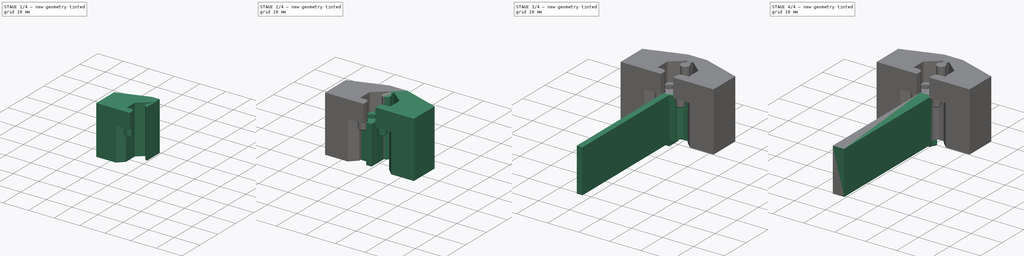
[diagram: build sequence overview — one tinted view per stage of 4, left to right]
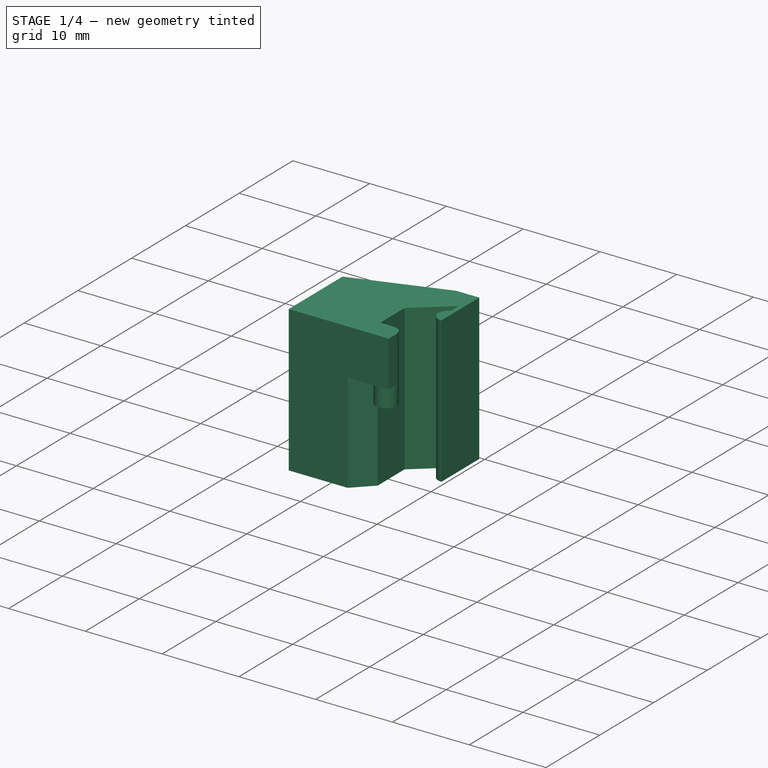
[diagram: stage 1 of 4 — iso view after this stage's code; geometry added in this stage tinted green]
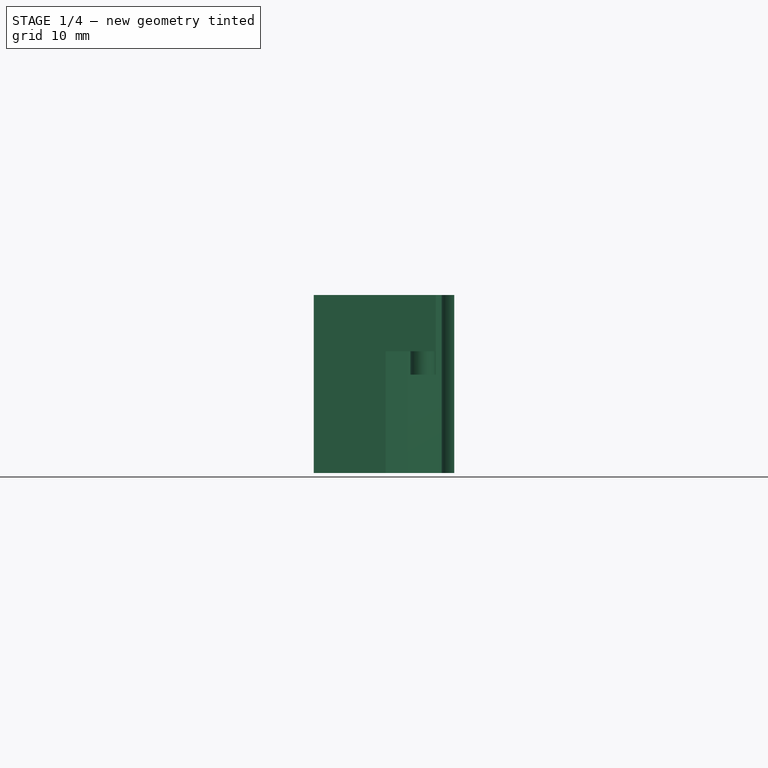
[diagram: stage 1 of 4 — front view after this stage's code; geometry added in this stage tinted green]
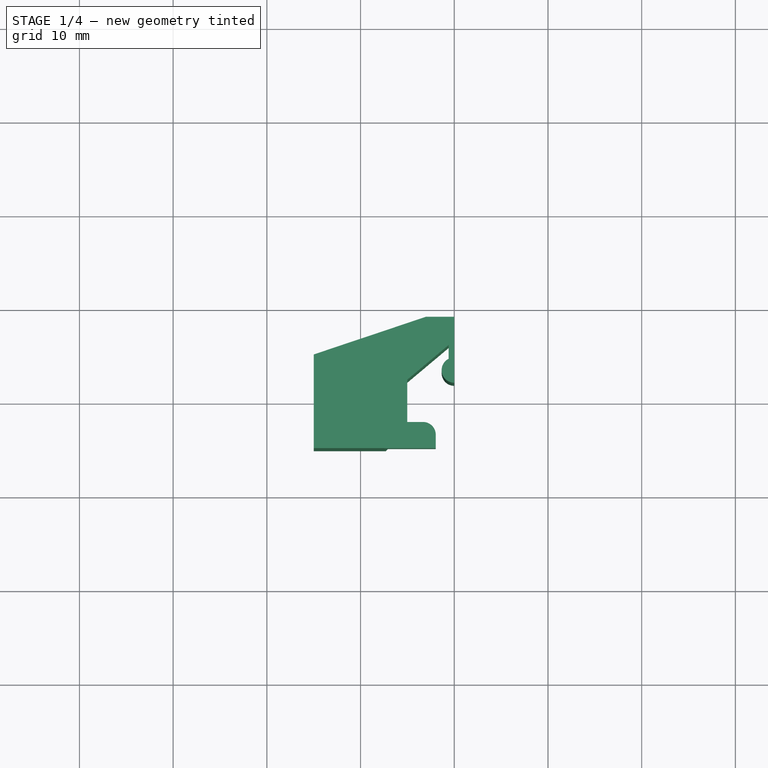
[diagram: stage 1 of 4 — top view after this stage's code; geometry added in this stage tinted green]
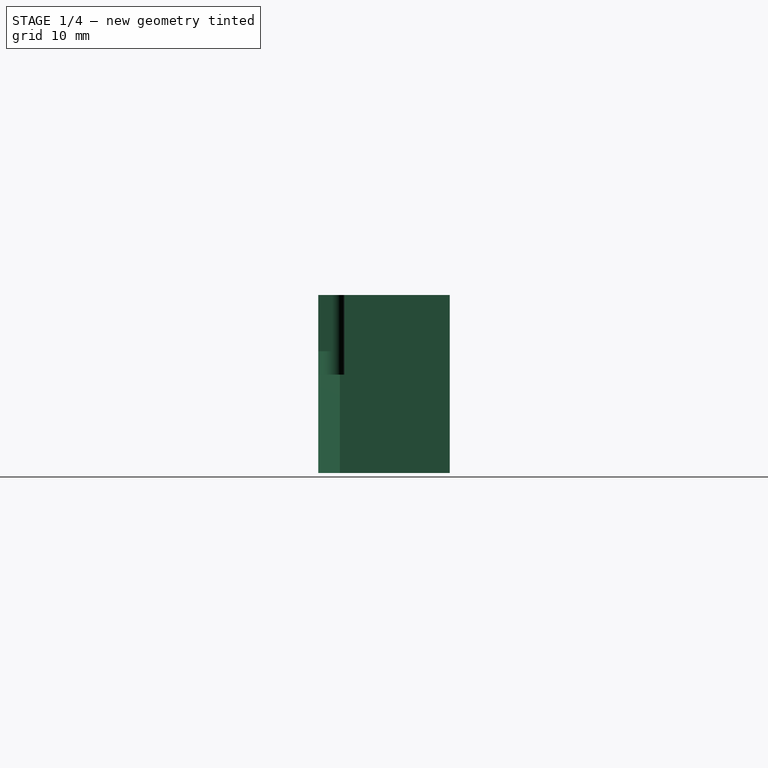
[diagram: stage 1 of 4 — right view after this stage's code; geometry added in this stage tinted green]
FCSTD DOCUMENT  (FreeCAD 0.21R33771 (Git))
Label: magnet_press_jig_side_2 part
License: All rights reserved
LicenseURL: https://en.wikipedia.org/wiki/All_rights_reserved
objects: Sketcher::SketchObject×6, PartDesign::Pad×6, PartDesign::Mirrored×3, PartDesign::Chamfer×3, PartDesign::Body×2, PartDesign::Plane×1
note: 30 computed .brp shape members not serialized (recipe doc carries the construction recipe); baked Part::Feature solids carry a one-line shape summary decoded from their .brp

FEATURE [Sketcher::SketchObject] Sketch001
  FullyConstrained = false
  MapMode = 5
  Support = -> [XY_Plane001]
  sketch-geometry (11):
    g0: ArcOfCircle CenterX=0 CenterY=9 CenterZ=0 NormalX=0 NormalY=0 NormalZ=1 AngleXU=0 Radius=2.4 StartAngle=1.5708 EndAngle=4.71239
    g1: LineSegment StartX=0 StartY=9 StartZ=0 EndX=-3 EndY=9 EndZ=0
    g2: LineSegment StartX=-3 StartY=9 StartZ=0 EndX=-15 EndY=4.97 EndZ=0
    g3: LineSegment StartX=-15 StartY=4.97 StartZ=0 EndX=-15 EndY=-5.03 EndZ=0
    g4: ArcOfCircle CenterX=0 CenterY=3.3 CenterZ=0 NormalX=0 NormalY=0 NormalZ=1 AngleXU=0 Radius=1.35 StartAngle=2.03135 EndAngle=4.71239
    g5: LineSegment StartX=-0.6 StartY=4.50934 StartZ=0 EndX=-0.6 EndY=5.98284 EndZ=0
    g6: LineSegment StartX=-0.6 StartY=5.98284 StartZ=0 EndX=-5.025 EndY=2.26982 EndZ=0
    g7: LineSegment StartX=-5.025 StartY=2.26982 StartZ=0 EndX=-5.025 EndY=-2.73018 EndZ=0
    g8: LineSegment StartX=-5.025 StartY=-2.73018 StartZ=0 EndX=-7.32482 EndY=-5.03 EndZ=0
    g9: LineSegment StartX=-15 StartY=-5.03 StartZ=0 EndX=-7.32482 EndY=-5.03 EndZ=0
    g10: LineSegment StartX=0 StartY=9 StartZ=0 EndX=0 EndY=1.95 EndZ=0
  constraints (36):
    c: PointOnObject(g0,g-2)
    c: Diameter(g0) = 4.8
    c: DistanceY(g-1,g0) = 9
    c: PointOnObject(g1,g-2)
    c: Horizontal(g1)
    c: Coincident(g2,g1)
    c: Coincident(g3,g2)
    c: Vertical(g3)
    c: PointOnObject(g4,g-2)
    c: Coincident(g6,g5)
    c: Coincident(g7,g6)
    c: Coincident(g8,g7)
    c: Vertical(g7)
    c: Angle(g7,g6) = 2.26893
    c: Vertical(g5)
    c: DistanceY(g-1,g4) = 3.3
    c: Diameter(g4) = 2.7
    c: DistanceX(g5,g-1) = 0.6
    c: DistanceY(g5,g5) = 1.4735
    c: DistanceX(g7,g-1) = 5.025
    c: PointOnObject(g0,g-2)
    c: Coincident(g4,g5)
    c: DistanceX(g1,g1) = 3
    c: DistanceY(g7,g7) = 5
    c: DistanceY(g3,g3) = 10
    c: DistanceY(g3,g-1) = 5.03
    c: Angle(g8,g-2) = 0.785398
    c: Horizontal(g9)
    c: Coincident(g8,g9)
    c: Coincident(g3,g9)
    c: DistanceY(g3,g-1) = 5.03
    c: Coincident(g10,g1)
    c: Coincident(g10,g4)
    c: Vertical(g10)
    c: DistanceY(g-1,g1) = 9
    c: DistanceX(g3,g-1) = 15
FEATURE [PartDesign::Pad] Pad001
  Direction = (0,0,1)
  Length = 19
  Length2 = 10
  Profile = -> Sketch001
  ReferenceAxis = -> Sketch001 [N_Axis]
  Type = 0
FEATURE [PartDesign::Plane] DatumPlane
  AttachmentOffset = pos=(0,0,13) rot=(0,0,1;0rad)
  Length = 60
  MapMode = 5
  Placement = pos=(0,0,13) rot=(0,0,1;0rad)
  ResizeMode = 0
  Support = -> [XY_Plane001]
  Width = 60
FEATURE [Sketcher::SketchObject] Sketch002
  FullyConstrained = true
  MapMode = 5
  Placement = pos=(0,0,13) rot=(0,0,1;0rad)
  Support = -> [DatumPlane]
  sketch-geometry (5):
    g0: ArcOfCircle CenterX=-3.33 CenterY=-3.58455 CenterZ=0 NormalX=0 NormalY=0 NormalZ=1 AngleXU=0 Radius=1.35 StartAngle=1e-16 EndAngle=1.5708
    g1: LineSegment StartX=-3.33 StartY=-2.23455 StartZ=0 EndX=-7.525 EndY=-2.23455 EndZ=0
    g2: LineSegment StartX=-7.525 StartY=-2.23455 StartZ=0 EndX=-7.525 EndY=-5.03455 EndZ=0
    g3: LineSegment StartX=-1.98 StartY=-3.58455 StartZ=0 EndX=-1.98 EndY=-5.03455 EndZ=0
    g4: LineSegment StartX=-1.98 StartY=-5.03455 StartZ=0 EndX=-7.525 EndY=-5.03455 EndZ=0
  constraints (14):
    c: Horizontal(g1)
    c: DistanceX(g0,g-1) = 3.33
    c: Diameter(g0) = 2.7
    c: DistanceY(g0,g-1) = 3.58455
    c: Coincident(g2,g1)
    c: Vertical(g2)
    c: Vertical(g3)
    c: Coincident(g4,g3)
    c: Coincident(g4,g2)
    c: Horizontal(g4)
    c: DistanceX(g2,g-1) = 7.525
    c: Tangent(g0,g1) = -1.5708
    c: Tangent(g0,g3) = 1.5708
    c: DistanceY(g2,g2) = 2.8
FEATURE [PartDesign::Pad] Pad002
  BaseFeature = -> Pad001
  Direction = (0,0,1)
  Length = 6
  Length2 = 10
  Profile = -> Sketch002
  ReferenceAxis = -> Sketch002 [N_Axis]
  Refine = true
  Type = 0
FEATURE [Sketcher::SketchObject] Sketch003
  FullyConstrained = true
  MapMode = 5
  Placement = pos=(0,0,13) rot=(0,0,1;0rad)
  Support = -> [DatumPlane]
  sketch-geometry (1):
    g0: Circle CenterX=-3.33 CenterY=-3.58455 CenterZ=0 NormalX=0 NormalY=0 NormalZ=1 AngleXU=0 Radius=1.35
  constraints (3):
    c: DistanceX(g0,g-1) = 3.33
    c: DistanceY(g0,g-1) = 3.58455
    c: Diameter(g0) = 2.7
FEATURE [PartDesign::Pad] Pad003
  BaseFeature = -> Pad002
  Direction = (0,0,1)
  Length = 2.5
  Length2 = 10
  Profile = -> Sketch003
  ReferenceAxis = -> Sketch003 [N_Axis]
  Reversed = true
  Type = 0
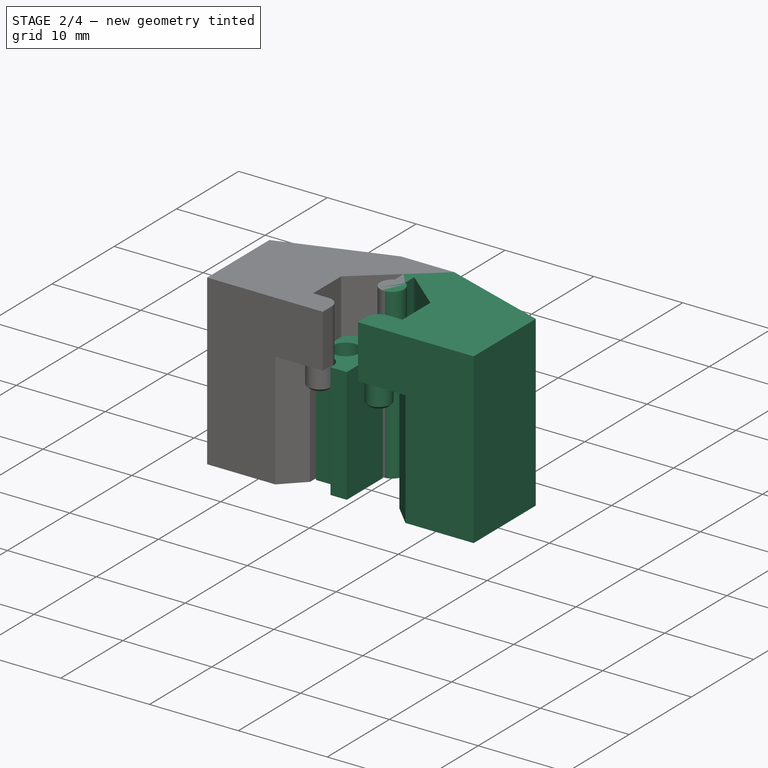
[diagram: stage 2 of 4 — iso view after this stage's code; geometry added in this stage tinted green]
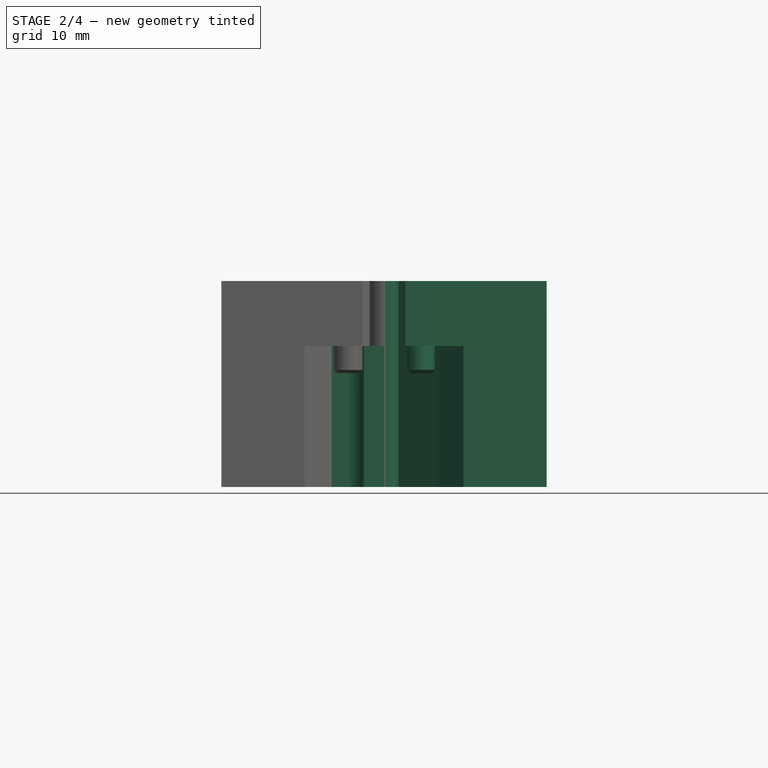
[diagram: stage 2 of 4 — front view after this stage's code; geometry added in this stage tinted green]
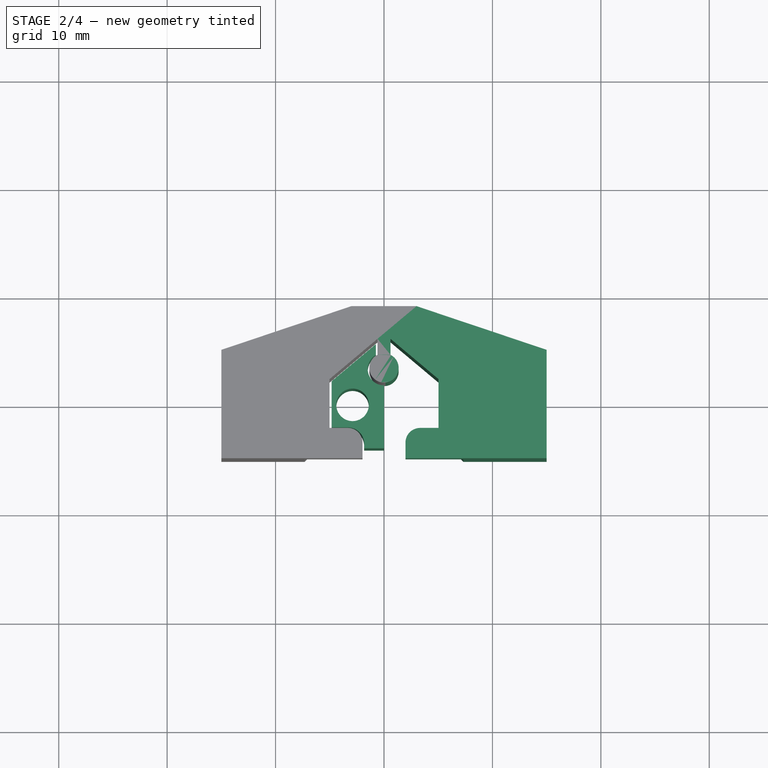
[diagram: stage 2 of 4 — top view after this stage's code; geometry added in this stage tinted green]
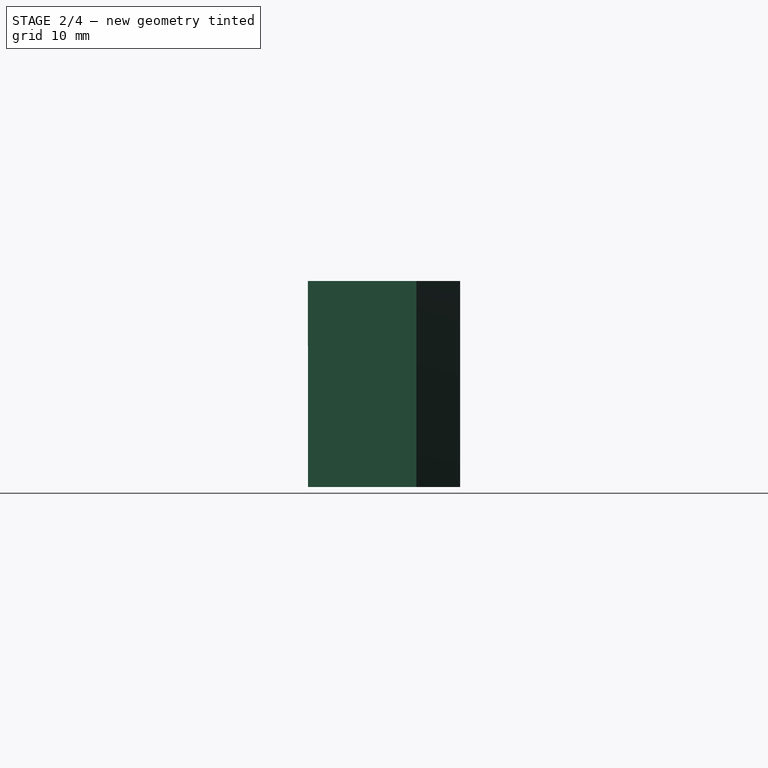
[diagram: stage 2 of 4 — right view after this stage's code; geometry added in this stage tinted green]
FEATURE [Sketcher::SketchObject] Sketch
  FullyConstrained = true
  MapMode = 5
  Support = -> [XY_Plane]
  sketch-geometry (10):
    g0: Circle CenterX=-2.9 CenterY=0 CenterZ=0 NormalX=0 NormalY=0 NormalZ=1 AngleXU=0 Radius=1.5
    g1: ArcOfCircle CenterX=-3.33 CenterY=-3.58 CenterZ=0 NormalX=0 NormalY=0 NormalZ=1 AngleXU=0 Radius=1.5 StartAngle=0 EndAngle=1.5708
    g2: ArcOfCircle CenterX=0 CenterY=3.3 CenterZ=0 NormalX=0 NormalY=0 NormalZ=1 AngleXU=0 Radius=1.5 StartAngle=2.0944 EndAngle=4.71239
    g3: LineSegment StartX=-4.83 StartY=-2.08 StartZ=0 EndX=-4.83 EndY=2.17647 EndZ=0
    g4: LineSegment StartX=-4.83 StartY=2.17647 StartZ=0 EndX=-0.75 EndY=5.6 EndZ=0
    g5: LineSegment StartX=-0.75 StartY=5.6 StartZ=0 EndX=-0.75 EndY=4.59904 EndZ=0
    g6: LineSegment StartX=-3e-16 StartY=-4 StartZ=0 EndX=-3e-16 EndY=1.8 EndZ=0
    g7: LineSegment StartX=-4.83 StartY=-2.08 StartZ=0 EndX=-3.33 EndY=-2.08 EndZ=0
    g8: LineSegment StartX=-1.83 StartY=-3.58 StartZ=0 EndX=-1.83 EndY=-4 EndZ=0
    g9: LineSegment StartX=-1.83 StartY=-4 StartZ=0 EndX=-2e-16 EndY=-4 EndZ=0
  constraints (31):
    c: PointOnObject(g0,g-1)
    c: PointOnObject(g2,g-2)
    c: DistanceY(g-1,g2) = 3.3
    c: Diameter(g2) = 3
    c: DistanceX(g0,g-1) = 2.9
    c: DistanceX(g1,g-1) = 3.33
    c: Diameter(g0) = 3
    c: Diameter(g1) = 3
    c: Vertical(g3)
    c: Coincident(g4,g3)
    c: Coincident(g5,g4)
    c: Vertical(g5)
    c: DistanceX(g4,g-1) = 0.75
    c: Vertical(g6)
    c: Coincident(g2,g6)
    c: Coincident(g2,g5)
    c: Angle(g3,g4) = 2.26893
    c: Horizontal(g7)
    c: Coincident(g3,g7)
    c: Tangent(g1,g7) = 1.5708
    c: DistanceX(g7,g7) = 1.5
    c: DistanceY(g-1,g4) = 5.6
    c: PointOnObject(g6,g-2)
    c: Horizontal(g1,g1)
    c: Coincident(g8,g1)
    c: Vertical(g8)
    c: Coincident(g9,g8)
    c: Horizontal(g9)
    c: Coincident(g6,g9)
    c: DistanceY(g1,g-1) = 3.58
    c: DistanceY(g6,g-1) = 4
FEATURE [PartDesign::Pad] Pad
  Direction = (0,0,1)
  Length = 13
  Length2 = 10
  Profile = -> Sketch
  ReferenceAxis = -> Sketch [N_Axis]
  Type = 0
FEATURE [PartDesign::Mirrored] Mirrored001
  BaseFeature = -> Pad003
  MirrorPlane = -> Sketch001 [V_Axis]
  Originals = -> [Pad001,Pad002,Pad003]
  Refine = true
FEATURE [PartDesign::Body] Body
  Group = -> [Sketch,Pad,Mirrored,Sketch004,Pad004,Sketch005,Pad005,Mirrored002,Chamfer,Chamfer001]
  Origin = -> Origin
  Tip = -> Chamfer001
FEATURE [PartDesign::Chamfer] Chamfer002
  Angle = 45
  Base = -> Mirrored001 [Edge88,Edge90]
  BaseFeature = -> Mirrored001
  ChamferType = 0
  FlipDirection = false
  Size = 0.3
  Size2 = 1
  SupportTransform = false
  UseAllEdges = false
FEATURE [PartDesign::Body] Body001
  Group = -> [Sketch001,Pad001,DatumPlane,Sketch002,Pad002,Sketch003,Pad003,Mirrored001,Chamfer002]
  Origin = -> Origin001
  Tip = -> Chamfer002
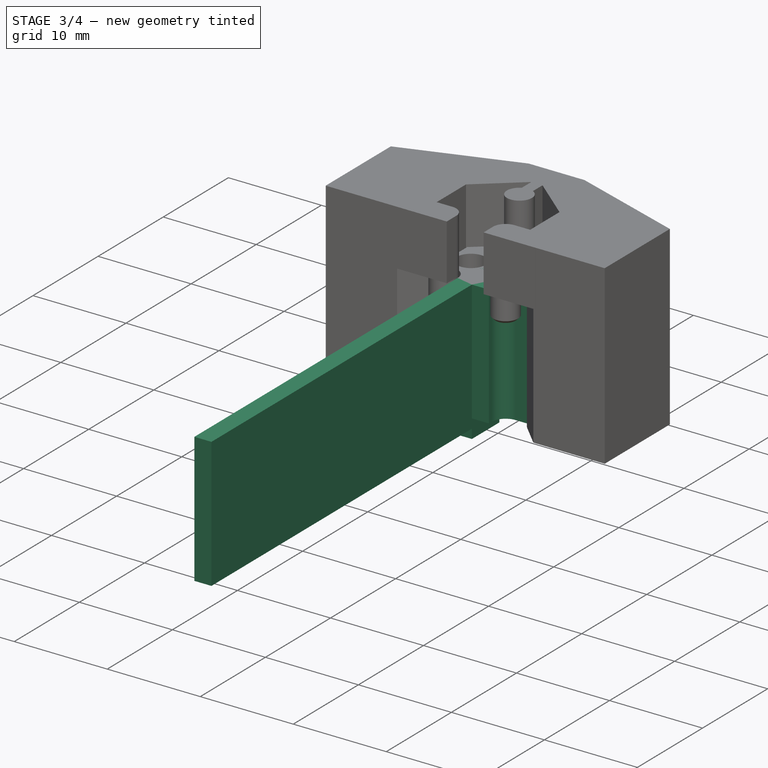
[diagram: stage 3 of 4 — iso view after this stage's code; geometry added in this stage tinted green]
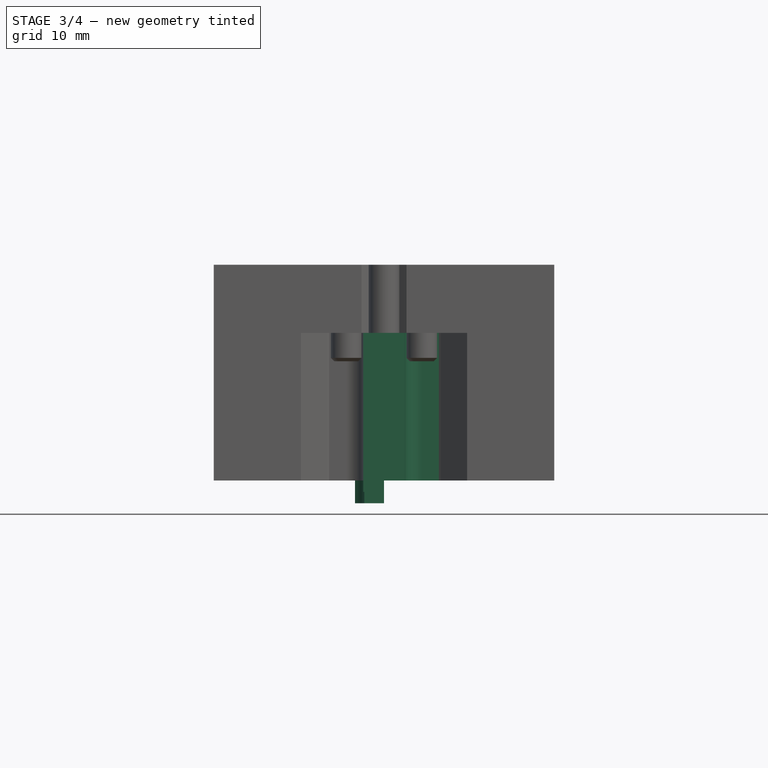
[diagram: stage 3 of 4 — front view after this stage's code; geometry added in this stage tinted green]
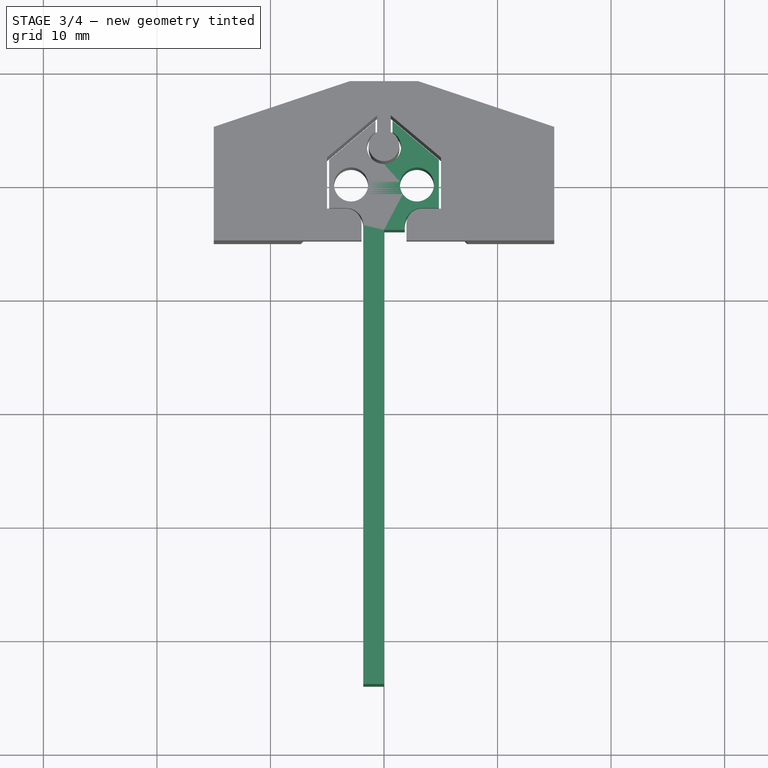
[diagram: stage 3 of 4 — top view after this stage's code; geometry added in this stage tinted green]
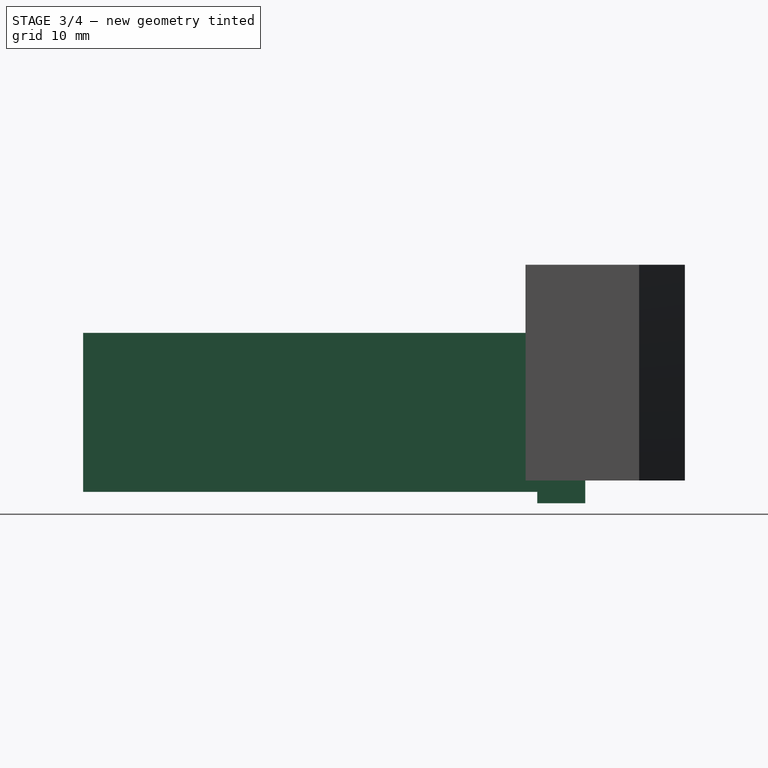
[diagram: stage 3 of 4 — right view after this stage's code; geometry added in this stage tinted green]
FEATURE [PartDesign::Mirrored] Mirrored
  BaseFeature = -> Pad
  MirrorPlane = -> Sketch [V_Axis]
  Originals = -> [Pad]
FEATURE [Sketcher::SketchObject] Sketch004
  FullyConstrained = true
  MapMode = 5
  Support = -> [XY_Plane]
  sketch-geometry (8):
    g0: ArcOfCircle CenterX=-3.33 CenterY=-3.58455 CenterZ=0 NormalX=0 NormalY=0 NormalZ=1 AngleXU=0 Radius=1.6 StartAngle=2e-16 EndAngle=1.06442
    g1: ArcOfCircle CenterX=0 CenterY=-0.126325 CenterZ=0 NormalX=0 NormalY=0 NormalZ=1 AngleXU=0 Radius=0.35 StartAngle=1.5708 EndAngle=2.35619
    g2: LineSegment StartX=-0.247487 StartY=0.121162 StartZ=0 EndX=-2.55399 EndY=-2.18534 EndZ=0
    g3: LineSegment StartX=0 StartY=-0.126325 StartZ=0 EndX=-3.39411 EndY=-3.52044 EndZ=0
    g4: LineSegment StartX=-3.39411 StartY=-3.52044 StartZ=0 EndX=-3.33 EndY=-3.58455 EndZ=0
    g5: LineSegment StartX=0 StartY=0.223675 StartZ=0 EndX=0 EndY=-4 EndZ=0
    g6: LineSegment StartX=-1.73 StartY=-3.58455 StartZ=0 EndX=-1.73 EndY=-4 EndZ=0
    g7: LineSegment StartX=-1.73 StartY=-4 StartZ=0 EndX=0 EndY=-4 EndZ=0
  constraints (23):
    c: PointOnObject(g1,g-2)
    c: DistanceX(g0,g-1) = 3.33
    c: DistanceY(g0,g-1) = 3.58455
    c: Diameter(g0) = 3.2
    c: Diameter(g1) = 0.7
    c: Tangent(g1,g2) = -1.5708
    c: Coincident(g3,g1)
    c: Coincident(g4,g3)
    c: Coincident(g4,g0)
    c: Perpendicular(g3,g4)
    c: Parallel(g3,g2)
    c: Distance(g3) = 4.8
    c: Vertical(g5)
    c: Coincident(g1,g5)
    c: Angle(g2,g5) = 0.785398
    c: Vertical(g6)
    c: Coincident(g0,g2)
    c: Tangent(g0,g6) = 1.5708
    c: Horizontal(g7)
    c: Coincident(g6,g7)
    c: Coincident(g5,g7)
    c: DistanceY(g5,g-1) = 4
    c: PointOnObject(g5,g-2)
FEATURE [PartDesign::Pad] Pad004
  BaseFeature = -> Mirrored
  Direction = (0,0,1)
  Length = 2
  Length2 = 13
  Profile = -> Sketch004
  ReferenceAxis = -> Sketch004 [N_Axis]
  Refine = true
  Reversed = true
  Type = 0
FEATURE [Sketcher::SketchObject] Sketch005
  FullyConstrained = true
  MapMode = 5
  Support = -> [XY_Plane]
  sketch-geometry (4):
    g0: LineSegment StartX=0 StartY=-4 StartZ=0 EndX=0 EndY=-44 EndZ=0
    g1: LineSegment StartX=-1.83 StartY=-4 StartZ=0 EndX=-1.83 EndY=-44 EndZ=0
    g2: LineSegment StartX=-1.83 StartY=-44 StartZ=0 EndX=0 EndY=-44 EndZ=0
    g3: LineSegment StartX=-1.83 StartY=-4 StartZ=0 EndX=0 EndY=-4 EndZ=0
  constraints (12):
    c: PointOnObject(g0,g-2)
    c: Vertical(g0)
    c: Vertical(g1)
    c: Coincident(g2,g1)
    c: Horizontal(g2)
    c: Coincident(g0,g2)
    c: Horizontal(g3)
    c: Coincident(g1,g3)
    c: Coincident(g0,g3)
    c: DistanceY(g0,g-1) = 4
    c: DistanceX(g3,g3) = 1.83
    c: DistanceY(g0,g0) = 40
FEATURE [PartDesign::Pad] Pad005
  BaseFeature = -> Pad004
  Direction = (0,0,1)
  Length = 1
  Length2 = 13
  Profile = -> Sketch005
  ReferenceAxis = -> Sketch005 [N_Axis]
  Refine = true
  Reversed = true
  Type = 4
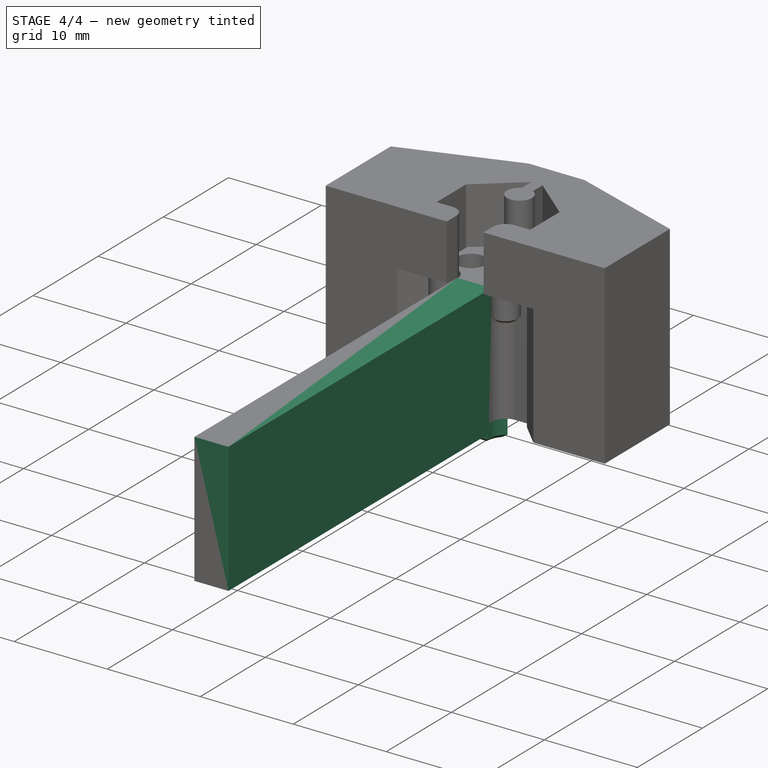
[diagram: stage 4 of 4 — iso view after this stage's code; geometry added in this stage tinted green]
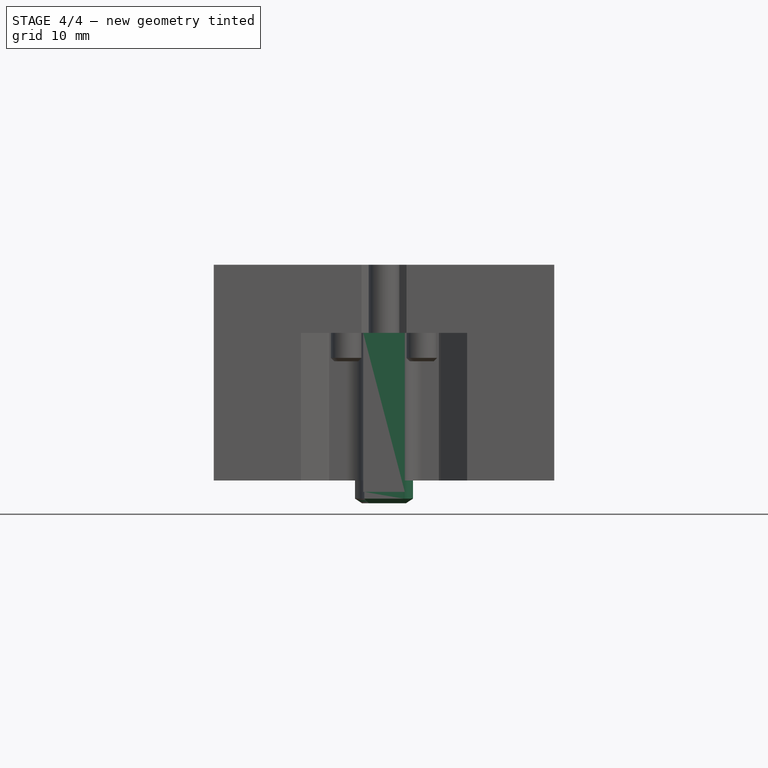
[diagram: stage 4 of 4 — front view after this stage's code; geometry added in this stage tinted green]
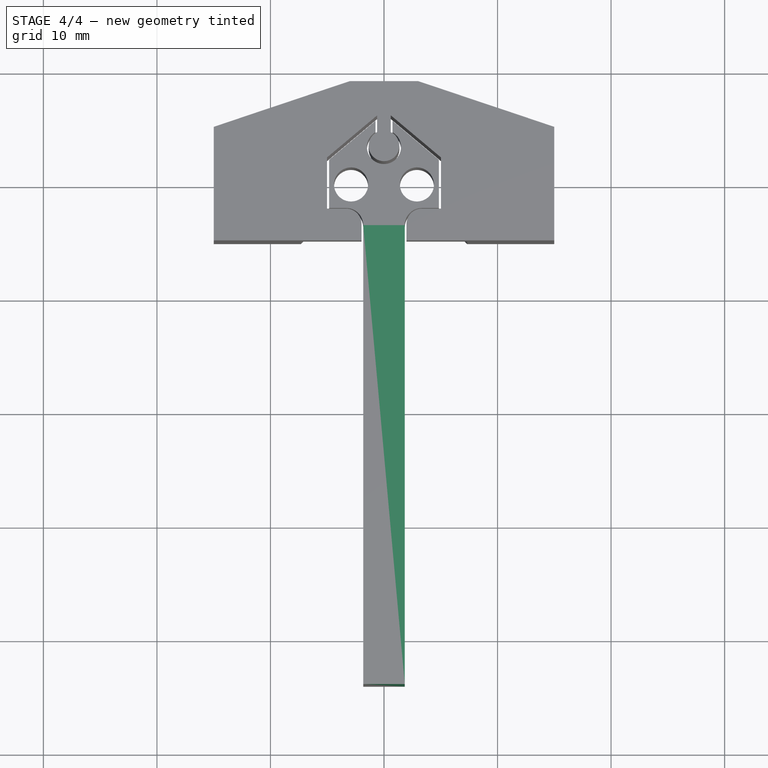
[diagram: stage 4 of 4 — top view after this stage's code; geometry added in this stage tinted green]
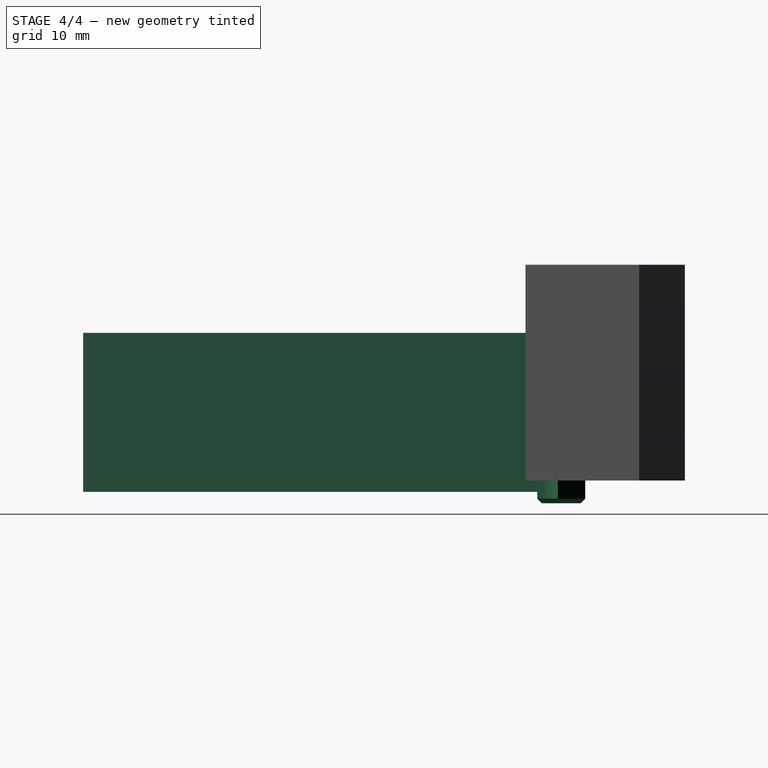
[diagram: stage 4 of 4 — right view after this stage's code; geometry added in this stage tinted green]
FEATURE [PartDesign::Mirrored] Mirrored002
  BaseFeature = -> Pad005
  MirrorPlane = -> Sketch004 [V_Axis]
  Originals = -> [Pad004,Pad005]
  Refine = true
FEATURE [PartDesign::Chamfer] Chamfer
  Angle = 45
  Base = -> Mirrored002 [Edge34,Edge50,Edge86,Edge85,Edge48,Edge46,Edge79,Edge8,Edge44]
  BaseFeature = -> Mirrored002
  ChamferType = 0
  FlipDirection = false
  Size = 0.4
  Size2 = 1
  SupportTransform = false
  UseAllEdges = false
FEATURE [PartDesign::Chamfer] Chamfer001
  Angle = 45
  Base = -> Chamfer
  BaseFeature = -> Chamfer
  ChamferType = 0
  FlipDirection = false
  Size = 1
  Size2 = 1
  SupportTransform = false
  UseAllEdges = false
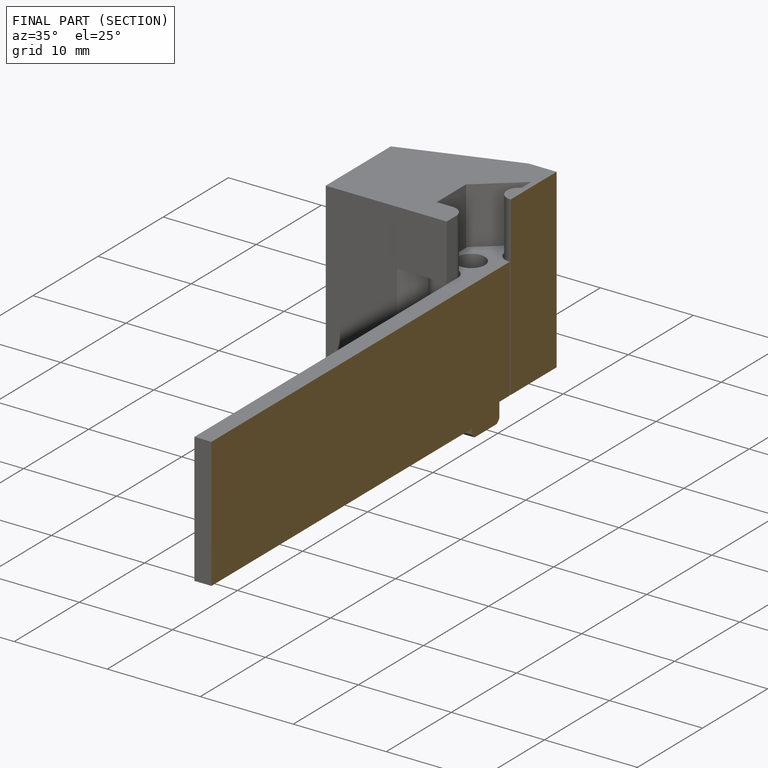
[diagram: finished part — half-section view (interior)]
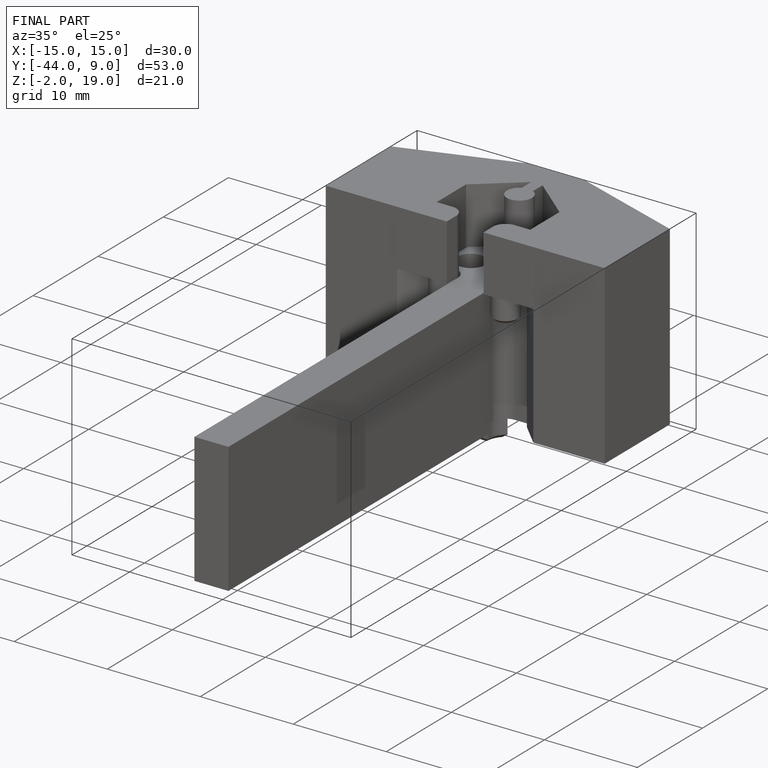
[diagram: finished part — iso view with bounding-box wireframe]
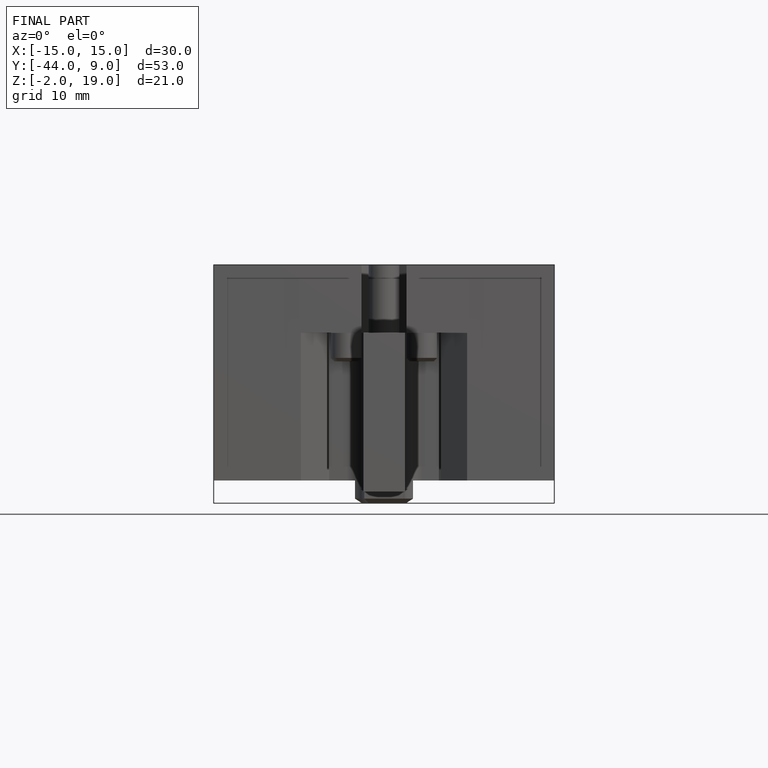
[diagram: finished part — front view with bounding-box wireframe]
